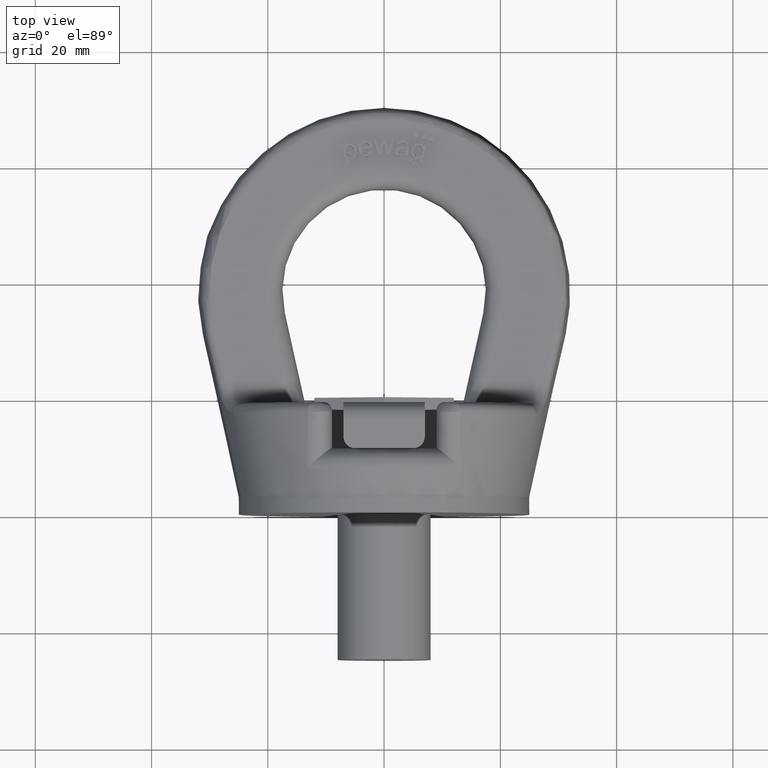
[diagram: clean part render]
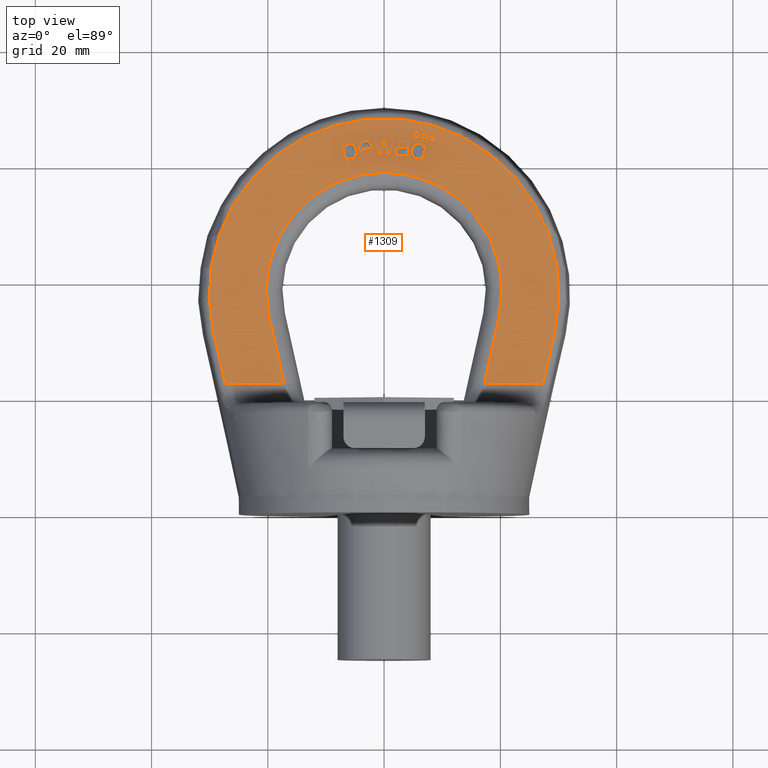
[diagram: same view with one face highlighted and labeled with its STEP entity id]
A machine part, top view. The second image highlights one B-rep face of the part: STEP entity #1309.
In plain terms, the highlighted planar face has unit normal (0, -0, -1).
Its self-contained STEP definition (entity closure, byte-faithful):
#1309=ADVANCED_FACE('',(#1756,#1757,#1758,#1759,#1760,#1761,#1762,#1763,
#1764),#1548,.F.);
#1548=PLANE('',#5122);
#1666=CIRCLE('',#5117,0.525);
#1667=CIRCLE('',#5118,0.525);
#1668=CIRCLE('',#5119,0.525);
#1669=CIRCLE('',#5120,20.3);
#1670=CIRCLE('',#5121,30.0832179129826);
#1756=FACE_BOUND('',#1812,.T.);
#1757=FACE_BOUND('',#1813,.T.);
#1758=FACE_BOUND('',#1814,.T.);
#1759=FACE_BOUND('',#1815,.T.);
#1760=FACE_BOUND('',#1816,.T.);
#1761=FACE_BOUND('',#1817,.T.);
#1762=FACE_BOUND('',#1818,.T.);
#1763=FACE_BOUND('',#1819,.T.);
#1764=FACE_BOUND('',#1820,.T.);
#1812=EDGE_LOOP('',(#2702,#2703,#2704,#2705,#2706,#2707,#2708));
#1813=EDGE_LOOP('',(#2709,#2710,#2711,#2712,#2713,#2714,#2715,#2716,#2717,
#2718,#2719,#2720,#2721,#2722,#2723));
#1814=EDGE_LOOP('',(#2724,#2725,#2726,#2727,#2728));
#1815=EDGE_LOOP('',(#2729));
#1816=EDGE_LOOP('',(#2730));
#1817=EDGE_LOOP('',(#2731));
#1818=EDGE_LOOP('',(#2732,#2733,#2734,#2735,#2736,#2737,#2738,#2739));
#1819=EDGE_LOOP('',(#2740,#2741,#2742,#2743,#2744,#2745));
#1820=EDGE_LOOP('',(#2746,#2747,#2748,#2749,#2750,#2751,#2752,#2753,#2754));
#2086=LINE('',#6270,#2366);
#2087=LINE('',#6302,#2367);
#2088=LINE('',#6304,#2368);
#2089=LINE('',#6305,#2369);
#2090=LINE('',#6308,#2370);
#2091=LINE('',#6310,#2371);
#2092=LINE('',#6312,#2372);
#2093=LINE('',#6326,#2373);
#2094=LINE('',#6328,#2374);
#2095=LINE('',#6344,#2375);
#2096=LINE('',#6346,#2376);
#2097=LINE('',#6348,#2377);
#2098=LINE('',#6350,#2378);
#2099=LINE('',#6352,#2379);
#2100=LINE('',#6368,#2380);
#2101=LINE('',#6391,#2381);
#2102=LINE('',#6401,#2382);
#2103=LINE('',#6403,#2383);
#2104=LINE('',#6417,#2384);
#2105=LINE('',#6419,#2385);
#2106=LINE('',#6420,#2386);
#2107=LINE('',#6423,#2387);
#2108=LINE('',#6425,#2388);
#2109=LINE('',#6427,#2389);
#2110=LINE('',#6429,#2390);
#2111=LINE('',#6453,#2391);
#2112=LINE('',#6498,#2392);
#2366=VECTOR('',#5384,1.);
#2367=VECTOR('',#5385,1.);
#2368=VECTOR('',#5386,1.);
#2369=VECTOR('',#5387,1.);
#2370=VECTOR('',#5388,1.);
#2371=VECTOR('',#5389,1.);
#2372=VECTOR('',#5390,1.);
#2373=VECTOR('',#5391,1.);
#2374=VECTOR('',#5392,1.);
#2375=VECTOR('',#5393,1.);
#2376=VECTOR('',#5394,1.);
#2377=VECTOR('',#5395,1.);
#2378=VECTOR('',#5396,1.);
#2379=VECTOR('',#5397,1.);
#2380=VECTOR('',#5398,1.);
#2381=VECTOR('',#5399,1.);
#2382=VECTOR('',#5408,1.);
#2383=VECTOR('',#5409,1.);
#2384=VECTOR('',#5412,1.);
#2385=VECTOR('',#5413,1.);
#2386=VECTOR('',#5414,1.);
#2387=VECTOR('',#5415,1.);
#2388=VECTOR('',#5416,1.);
#2389=VECTOR('',#5417,1.);
#2390=VECTOR('',#5418,1.);
#2391=VECTOR('',#5419,1.);
#2392=VECTOR('',#5420,1.);
#2702=ORIENTED_EDGE('',*,*,#4266,.T.);
#2703=ORIENTED_EDGE('',*,*,#4267,.T.);
#2704=ORIENTED_EDGE('',*,*,#4268,.T.);
#2705=ORIENTED_EDGE('',*,*,#4269,.T.);
#2706=ORIENTED_EDGE('',*,*,#4270,.T.);
#2707=ORIENTED_EDGE('',*,*,#4271,.T.);
#2708=ORIENTED_EDGE('',*,*,#4272,.T.);
#2709=ORIENTED_EDGE('',*,*,#4273,.T.);
#2710=ORIENTED_EDGE('',*,*,#4274,.T.);
#2711=ORIENTED_EDGE('',*,*,#4275,.T.);
#2712=ORIENTED_EDGE('',*,*,#4276,.T.);
#2713=ORIENTED_EDGE('',*,*,#4277,.T.);
#2714=ORIENTED_EDGE('',*,*,#4278,.T.);
#2715=ORIENTED_EDGE('',*,*,#4279,.T.);
#2716=ORIENTED_EDGE('',*,*,#4280,.T.);
#2717=ORIENTED_EDGE('',*,*,#4281,.T.);
#2718=ORIENTED_EDGE('',*,*,#4282,.T.);
#2719=ORIENTED_EDGE('',*,*,#4283,.T.);
#2720=ORIENTED_EDGE('',*,*,#4284,.T.);
#2721=ORIENTED_EDGE('',*,*,#4285,.T.);
#2722=ORIENTED_EDGE('',*,*,#4286,.T.);
#2723=ORIENTED_EDGE('',*,*,#4287,.T.);
#2724=ORIENTED_EDGE('',*,*,#4288,.T.);
#2725=ORIENTED_EDGE('',*,*,#4289,.T.);
#2726=ORIENTED_EDGE('',*,*,#4290,.T.);
#2727=ORIENTED_EDGE('',*,*,#4291,.T.);
#2728=ORIENTED_EDGE('',*,*,#4292,.T.);
#2729=ORIENTED_EDGE('',*,*,#4293,.F.);
#2730=ORIENTED_EDGE('',*,*,#4294,.F.);
#2731=ORIENTED_EDGE('',*,*,#4295,.F.);
#2732=ORIENTED_EDGE('',*,*,#4296,.T.);
#2733=ORIENTED_EDGE('',*,*,#4297,.T.);
#2734=ORIENTED_EDGE('',*,*,#4298,.T.);
#2735=ORIENTED_EDGE('',*,*,#4299,.T.);
#2736=ORIENTED_EDGE('',*,*,#4300,.T.);
#2737=ORIENTED_EDGE('',*,*,#4301,.T.);
#2738=ORIENTED_EDGE('',*,*,#4302,.T.);
#2739=ORIENTED_EDGE('',*,*,#4303,.T.);
#2740=ORIENTED_EDGE('',*,*,#4304,.T.);
#2741=ORIENTED_EDGE('',*,*,#4305,.T.);
#2742=ORIENTED_EDGE('',*,*,#4306,.T.);
#2743=ORIENTED_EDGE('',*,*,#4307,.T.);
#2744=ORIENTED_EDGE('',*,*,#4308,.T.);
#2745=ORIENTED_EDGE('',*,*,#4309,.T.);
#2746=ORIENTED_EDGE('',*,*,#4310,.T.);
#2747=ORIENTED_EDGE('',*,*,#4311,.T.);
#2748=ORIENTED_EDGE('',*,*,#4312,.T.);
#2749=ORIENTED_EDGE('',*,*,#4313,.T.);
#2750=ORIENTED_EDGE('',*,*,#4314,.T.);
#2751=ORIENTED_EDGE('',*,*,#4315,.T.);
#2752=ORIENTED_EDGE('',*,*,#4316,.T.);
#2753=ORIENTED_EDGE('',*,*,#4317,.T.);
#2754=ORIENTED_EDGE('',*,*,#4318,.T.);
#3878=VERTEX_POINT('',#6263);
#3879=VERTEX_POINT('',#6264);
#3880=VERTEX_POINT('',#6269);
#3881=VERTEX_POINT('',#6271);
#3882=VERTEX_POINT('',#6284);
#3883=VERTEX_POINT('',#6301);
#3884=VERTEX_POINT('',#6303);
#3885=VERTEX_POINT('',#6306);
#3886=VERTEX_POINT('',#6307);
#3887=VERTEX_POINT('',#6309);
#3888=VERTEX_POINT('',#6311);
#3889=VERTEX_POINT('',#6313);
#3890=VERTEX_POINT('',#6320);
#3891=VERTEX_POINT('',#6325);
#3892=VERTEX_POINT('',#6327);
#3893=VERTEX_POINT('',#6329);
#3894=VERTEX_POINT('',#6336);
#3895=VERTEX_POINT('',#6343);
#3896=VERTEX_POINT('',#6345);
#3897=VERTEX_POINT('',#6347);
#3898=VERTEX_POINT('',#6349);
#3899=VERTEX_POINT('',#6351);
#3900=VERTEX_POINT('',#6361);
#3901=VERTEX_POINT('',#6362);
#3902=VERTEX_POINT('',#6367);
#3903=VERTEX_POINT('',#6369);
#3904=VERTEX_POINT('',#6390);
#3905=VERTEX_POINT('',#6393);
#3906=VERTEX_POINT('',#6395);
#3907=VERTEX_POINT('',#6397);
#3908=VERTEX_POINT('',#6399);
#3909=VERTEX_POINT('',#6400);
#3910=VERTEX_POINT('',#6402);
#3911=VERTEX_POINT('',#6404);
#3912=VERTEX_POINT('',#6409);
#3913=VERTEX_POINT('',#6411);
#3914=VERTEX_POINT('',#6416);
#3915=VERTEX_POINT('',#6418);
#3916=VERTEX_POINT('',#6421);
#3917=VERTEX_POINT('',#6422);
#3918=VERTEX_POINT('',#6424);
#3919=VERTEX_POINT('',#6426);
#3920=VERTEX_POINT('',#6428);
#3921=VERTEX_POINT('',#6430);
#3922=VERTEX_POINT('',#6454);
#3923=VERTEX_POINT('',#6455);
#3924=VERTEX_POINT('',#6460);
#3925=VERTEX_POINT('',#6477);
#3926=VERTEX_POINT('',#6484);
#3927=VERTEX_POINT('',#6497);
#3928=VERTEX_POINT('',#6499);
#3929=VERTEX_POINT('',#6504);
#3930=VERTEX_POINT('',#6517);
#4266=EDGE_CURVE('',#3878,#3879,#4854,.T.);
#4267=EDGE_CURVE('',#3879,#3880,#4855,.T.);
#4268=EDGE_CURVE('',#3880,#3881,#2086,.T.);
#4269=EDGE_CURVE('',#3881,#3882,#4856,.T.);
#4270=EDGE_CURVE('',#3882,#3883,#4857,.T.);
#4271=EDGE_CURVE('',#3883,#3884,#2087,.T.);
#4272=EDGE_CURVE('',#3884,#3878,#2088,.T.);
#4273=EDGE_CURVE('',#3885,#3886,#2089,.T.);
#4274=EDGE_CURVE('',#3886,#3887,#2090,.T.);
#4275=EDGE_CURVE('',#3887,#3888,#2091,.T.);
#4276=EDGE_CURVE('',#3888,#3889,#2092,.T.);
#4277=EDGE_CURVE('',#3889,#3890,#4858,.T.);
#4278=EDGE_CURVE('',#3890,#3891,#4859,.T.);
#4279=EDGE_CURVE('',#3891,#3892,#2093,.T.);
#4280=EDGE_CURVE('',#3892,#3893,#2094,.T.);
#4281=EDGE_CURVE('',#3893,#3894,#4860,.T.);
#4282=EDGE_CURVE('',#3894,#3895,#4861,.T.);
#4283=EDGE_CURVE('',#3895,#3896,#2095,.T.);
#4284=EDGE_CURVE('',#3896,#3897,#2096,.T.);
#4285=EDGE_CURVE('',#3897,#3898,#2097,.T.);
#4286=EDGE_CURVE('',#3898,#3899,#2098,.T.);
#4287=EDGE_CURVE('',#3899,#3885,#2099,.T.);
#4288=EDGE_CURVE('',#3900,#3901,#4862,.T.);
#4289=EDGE_CURVE('',#3901,#3902,#4863,.T.);
#4290=EDGE_CURVE('',#3902,#3903,#2100,.T.);
#4291=EDGE_CURVE('',#3903,#3904,#4864,.T.);
#4292=EDGE_CURVE('',#3904,#3900,#2101,.T.);
#4293=EDGE_CURVE('',#3905,#3905,#1666,.T.);
#4294=EDGE_CURVE('',#3906,#3906,#1667,.T.);
#4295=EDGE_CURVE('',#3907,#3907,#1668,.T.);
#4296=EDGE_CURVE('',#3908,#3909,#1669,.T.);
#4297=EDGE_CURVE('',#3909,#3910,#2102,.T.);
#4298=EDGE_CURVE('',#3910,#3911,#2103,.T.);
#4299=EDGE_CURVE('',#3911,#3912,#4865,.T.);
#4300=EDGE_CURVE('',#3912,#3913,#1670,.T.);
#4301=EDGE_CURVE('',#3913,#3914,#4866,.T.);
#4302=EDGE_CURVE('',#3914,#3915,#2104,.T.);
#4303=EDGE_CURVE('',#3915,#3908,#2105,.T.);
#4304=EDGE_CURVE('',#3916,#3917,#2106,.T.);
#4305=EDGE_CURVE('',#3917,#3918,#2107,.T.);
#4306=EDGE_CURVE('',#3918,#3919,#2108,.T.);
#4307=EDGE_CURVE('',#3919,#3920,#2109,.T.);
#4308=EDGE_CURVE('',#3920,#3921,#2110,.T.);
#4309=EDGE_CURVE('',#3921,#3916,#4867,.T.);
#4310=EDGE_CURVE('',#3922,#3923,#2111,.T.);
#4311=EDGE_CURVE('',#3923,#3924,#4868,.T.);
#4312=EDGE_CURVE('',#3924,#3925,#4869,.T.);
#4313=EDGE_CURVE('',#3925,#3926,#4870,.T.);
#4314=EDGE_CURVE('',#3926,#3927,#4871,.T.);
#4315=EDGE_CURVE('',#3927,#3928,#2112,.T.);
#4316=EDGE_CURVE('',#3928,#3929,#4872,.T.);
#4317=EDGE_CURVE('',#3929,#3930,#4873,.T.);
#4318=EDGE_CURVE('',#3930,#3922,#4874,.T.);
#4854=B_SPLINE_CURVE_WITH_KNOTS('',3,(#6251,#6252,#6253,#6254,#6255,#6256,
#6257,#6258,#6259,#6260,#6261,#6262),.UNSPECIFIED.,.F.,.F.,(4,2,2,2,2,4),
(0.,0.305645754892091,0.470829306249216,0.636012857606337,0.802206343843957,
1.),.UNSPECIFIED.);
#4855=B_SPLINE_CURVE_WITH_KNOTS('',3,(#6265,#6266,#6267,#6268),
 .UNSPECIFIED.,.F.,.F.,(4,4),(0.,1.),.UNSPECIFIED.);
#4856=B_SPLINE_CURVE_WITH_KNOTS('',3,(#6272,#6273,#6274,#6275,#6276,#6277,
#6278,#6279,#6280,#6281,#6282,#6283),.UNSPECIFIED.,.F.,.F.,(4,2,2,2,2,4),
(0.,0.163304651309286,0.382303784248526,0.619375661168191,0.856447538087856,
1.),.UNSPECIFIED.);
#4857=B_SPLINE_CURVE_WITH_KNOTS('',3,(#6285,#6286,#6287,#6288,#6289,#6290,
#6291,#6292,#6293,#6294,#6295,#6296,#6297,#6298,#6299,#6300),
 .UNSPECIFIED.,.F.,.F.,(4,2,2,2,2,2,2,4),(0.,0.139503666745454,0.312880428291719,
0.486257189837984,0.605370995480456,0.723854105689076,0.842337215897695,
1.),.UNSPECIFIED.);
#4858=B_SPLINE_CURVE_WITH_KNOTS('',3,(#6314,#6315,#6316,#6317,#6318,#6319),
 .UNSPECIFIED.,.F.,.F.,(4,2,4),(0.,0.728909607654955,1.),.UNSPECIFIED.);
#4859=B_SPLINE_CURVE_WITH_KNOTS('',3,(#6321,#6322,#6323,#6324),
 .UNSPECIFIED.,.F.,.F.,(4,4),(0.,1.),.UNSPECIFIED.);
#4860=B_SPLINE_CURVE_WITH_KNOTS('',3,(#6330,#6331,#6332,#6333,#6334,#6335),
 .UNSPECIFIED.,.F.,.F.,(4,2,4),(0.,0.752082276025118,1.),.UNSPECIFIED.);
#4861=B_SPLINE_CURVE_WITH_KNOTS('',3,(#6337,#6338,#6339,#6340,#6341,#6342),
 .UNSPECIFIED.,.F.,.F.,(4,2,4),(0.,0.250451922487267,1.),.UNSPECIFIED.);
#4862=B_SPLINE_CURVE_WITH_KNOTS('',3,(#6353,#6354,#6355,#6356,#6357,#6358,
#6359,#6360),.UNSPECIFIED.,.F.,.F.,(4,2,2,4),(0.,0.363477968613214,0.72808767591244,
1.),.UNSPECIFIED.);
#4863=B_SPLINE_CURVE_WITH_KNOTS('',3,(#6363,#6364,#6365,#6366),
 .UNSPECIFIED.,.F.,.F.,(4,4),(0.,1.),.UNSPECIFIED.);
#4864=B_SPLINE_CURVE_WITH_KNOTS('',3,(#6370,#6371,#6372,#6373,#6374,#6375,
#6376,#6377,#6378,#6379,#6380,#6381,#6382,#6383,#6384,#6385,#6386,#6387,
#6388,#6389),.UNSPECIFIED.,.F.,.F.,(4,2,2,2,2,2,2,2,2,4),(0.,0.102921203122037,
0.206156274885321,0.336063021724226,0.465707475917728,0.599570296299737,
0.733433116681746,0.86284525505617,0.992257393430591,1.),.UNSPECIFIED.);
#4865=B_SPLINE_CURVE_WITH_KNOTS('',3,(#6405,#6406,#6407,#6408),
 .UNSPECIFIED.,.F.,.F.,(4,4),(0.,1.),.UNSPECIFIED.);
#4866=B_SPLINE_CURVE_WITH_KNOTS('',3,(#6412,#6413,#6414,#6415),
 .UNSPECIFIED.,.F.,.F.,(4,4),(0.,1.),.UNSPECIFIED.);
#4867=B_SPLINE_CURVE_WITH_KNOTS('',3,(#6431,#6432,#6433,#6434,#6435,#6436,
#6437,#6438,#6439,#6440,#6441,#6442,#6443,#6444,#6445,#6446,#6447,#6448,
#6449,#6450,#6451,#6452),.UNSPECIFIED.,.F.,.F.,(4,2,2,2,2,2,2,2,2,2,4),
(0.,0.0830854503763923,0.16567829675508,0.273272220956507,0.380460889370535,
0.487248686046695,0.60194668988405,0.717055250849206,0.83190951462343,0.915821305508708,
1.),.UNSPECIFIED.);
#4868=B_SPLINE_CURVE_WITH_KNOTS('',3,(#6456,#6457,#6458,#6459),
 .UNSPECIFIED.,.F.,.F.,(4,4),(0.,1.),.UNSPECIFIED.);
#4869=B_SPLINE_CURVE_WITH_KNOTS('',3,(#6461,#6462,#6463,#6464,#6465,#6466,
#6467,#6468,#6469,#6470,#6471,#6472,#6473,#6474,#6475,#6476),
 .UNSPECIFIED.,.F.,.F.,(4,2,2,2,2,2,2,4),(0.,0.121639465164564,0.243930904991191,
0.445161792748233,0.646392680505281,0.763565096161279,0.881519242448374,
1.),.UNSPECIFIED.);
#4870=B_SPLINE_CURVE_WITH_KNOTS('',3,(#6478,#6479,#6480,#6481,#6482,#6483),
 .UNSPECIFIED.,.F.,.F.,(4,2,4),(0.,0.329344693449401,1.),.UNSPECIFIED.);
#4871=B_SPLINE_CURVE_WITH_KNOTS('',3,(#6485,#6486,#6487,#6488,#6489,#6490,
#6491,#6492,#6493,#6494,#6495,#6496),.UNSPECIFIED.,.F.,.F.,(4,2,2,2,2,4),
(0.,0.0173977322142917,0.217983350684955,0.490675035316427,0.745337517658212,
1.),.UNSPECIFIED.);
#4872=B_SPLINE_CURVE_WITH_KNOTS('',3,(#6500,#6501,#6502,#6503),
 .UNSPECIFIED.,.F.,.F.,(4,4),(0.,1.),.UNSPECIFIED.);
#4873=B_SPLINE_CURVE_WITH_KNOTS('',3,(#6505,#6506,#6507,#6508,#6509,#6510,
#6511,#6512,#6513,#6514,#6515,#6516),.UNSPECIFIED.,.F.,.F.,(4,2,2,2,2,4),
(0.,0.201730292707488,0.402155128097309,0.601755169925859,0.800199545078044,
1.),.UNSPECIFIED.);
#4874=B_SPLINE_CURVE_WITH_KNOTS('',3,(#6518,#6519,#6520,#6521,#6522,#6523,
#6524,#6525,#6526,#6527),.UNSPECIFIED.,.F.,.F.,(4,2,2,2,4),(0.,0.161403604805117,
0.323059797411176,0.66178003848106,1.),.UNSPECIFIED.);
#5117=AXIS2_PLACEMENT_3D('',#6392,#5400,#5401);
#5118=AXIS2_PLACEMENT_3D('',#6394,#5402,#5403);
#5119=AXIS2_PLACEMENT_3D('',#6396,#5404,#5405);
#5120=AXIS2_PLACEMENT_3D('',#6398,#5406,#5407);
#5121=AXIS2_PLACEMENT_3D('',#6410,#5410,#5411);
#5122=AXIS2_PLACEMENT_3D('',#6528,#5421,#5422);
#5384=DIRECTION('',(0.92603689824407,-0.377432991523664,4.83006298281828E-17));
#5385=DIRECTION('',(0.240441711768691,0.970663578816957,-1.24217180959385E-16));
#5386=DIRECTION('',(0.970663578816971,-0.240441711768634,3.07696634269007E-17));
#5387=DIRECTION('',(-0.258675883018077,-0.965964175083537,1.23615791665818E-16));
#5388=DIRECTION('',(-0.999999995678886,9.29635860433129E-5,-1.18966806236305E-20));
#5389=DIRECTION('',(-0.297319028478967,0.954778191678216,-1.22184305664705E-16));
#5390=DIRECTION('',(0.999999995678886,-9.29635860091688E-5,1.18966806192611E-20));
#5391=DIRECTION('',(0.26668775938768,0.963782983348834,-1.23336661497211E-16));
#5392=DIRECTION('',(0.999999995678886,-9.2963586056326E-5,1.18966806252958E-20));
#5393=DIRECTION('',(0.999999995678886,-9.29635860772335E-5,1.18966806279714E-20));
#5394=DIRECTION('',(-0.303109223404766,-0.952955822001713,1.21951094458658E-16));
#5395=DIRECTION('',(-0.999999995678886,9.29635860083686E-5,-1.18966806191586E-20));
#5396=DIRECTION('',(-0.26055342948147,0.965459429694197,-1.23551198689699E-16));
#5397=DIRECTION('',(-0.226101851815538,0.974103666251999,-1.24657413778211E-16));
#5398=DIRECTION('',(0.99995564898741,0.00941807083052857,-1.20524374682928E-18));
#5399=DIRECTION('',(-0.991600377783164,-0.129339440157616,1.65517497450822E-17));
#5400=DIRECTION('',(0.,1.27971403965502E-16,1.));
#5401=DIRECTION('',(0.,0.999999999999995,0.));
#5402=DIRECTION('',(0.,1.27971403965502E-16,1.));
#5403=DIRECTION('',(0.,0.999999999999995,0.));
#5404=DIRECTION('',(0.,1.27971403965502E-16,1.));
#5405=DIRECTION('',(0.,0.999999999999995,0.));
#5406=DIRECTION('',(0.,-1.27971403965502E-16,-1.));
#5407=DIRECTION('',(0.,1.,-1.28181537633754E-16));
#5408=DIRECTION('',(-0.217024111805407,-0.97616624347243,1.24921364680897E-16));
#5409=DIRECTION('',(1.,0.,0.));
#5410=DIRECTION('',(0.,1.27971403965502E-16,1.));
#5411=DIRECTION('',(0.,1.,-1.1532831899796E-16));
#5412=DIRECTION('',(1.,0.,0.));
#5413=DIRECTION('',(-0.217024111805407,0.97616624347243,-1.24921364680897E-16));
#5414=DIRECTION('',(0.240261234879319,-0.970708266686889,1.2422289972884E-16));
#5415=DIRECTION('',(-0.97070826668689,-0.240261234879317,3.07465675459915E-17));
#5416=DIRECTION('',(-0.240261234879318,0.970708266686889,-1.2422289972884E-16));
#5417=DIRECTION('',(0.9707082666869,0.240261234879277,-3.07465675459863E-17));
#5418=DIRECTION('',(0.240261234879321,-0.970708266686889,1.2422289972884E-16));
#5419=DIRECTION('',(-0.991576312927651,0.129523803375307,-1.65753429648896E-17));
#5420=DIRECTION('',(-0.965560779386225,0.260177595713131,-3.32952922037782E-17));
#5421=DIRECTION('',(0.,-1.27971403965502E-16,-1.));
#5422=DIRECTION('',(0.,1.,-1.28369537222284E-16));
#6251=CARTESIAN_POINT('',(7.24005046726286,63.357438363495,7.));
#6252=CARTESIAN_POINT('',(7.06437854891768,62.648250545357,7.));
#6253=CARTESIAN_POINT('',(6.88870663057249,61.9390627272191,7.));
#6254=CARTESIAN_POINT('',(6.61809437400399,60.8466006103081,7.));
#6255=CARTESIAN_POINT('',(6.51113146138758,60.5852979369876,7.));
#6256=CARTESIAN_POINT('',(6.27272991894128,60.3048976358151,7.));
#6257=CARTESIAN_POINT('',(6.11572549508912,60.2091141327275,7.));
#6258=CARTESIAN_POINT('',(5.72578205178179,60.1095534020604,7.));
#6259=CARTESIAN_POINT('',(5.50222487928482,60.1157170039598,7.));
#6260=CARTESIAN_POINT('',(4.95218007910664,60.2519678288496,7.));
#6261=CARTESIAN_POINT('',(4.7271233024176,60.3778210425066,7.));
#6262=CARTESIAN_POINT('',(4.5759086919016,60.5554876325012,7.));
#6263=CARTESIAN_POINT('',(7.24005046726286,63.357438363495,7.));
#6264=CARTESIAN_POINT('',(4.5759086919016,60.5554876325012,7.));
#6265=CARTESIAN_POINT('',(4.5759086919016,60.5554876325012,7.));
#6266=CARTESIAN_POINT('',(4.4246940813856,60.7331542224958,7.));
#6267=CARTESIAN_POINT('',(4.38556252641333,60.9540840223014,7.));
#6268=CARTESIAN_POINT('',(4.45741442637212,61.2176269819729,7.));
#6269=CARTESIAN_POINT('',(4.45741442637212,61.2176269819729,7.));
#6270=CARTESIAN_POINT('',(48.9530651344794,43.0821438404289,7.));
#6271=CARTESIAN_POINT('',(4.85553557396283,61.0553612493558,7.));
#6272=CARTESIAN_POINT('',(4.85553557396283,61.0553612493558,7.));
#6273=CARTESIAN_POINT('',(4.84133665877704,60.9260484552302,7.));
#6274=CARTESIAN_POINT('',(4.86648490188893,60.8229638200587,7.));
#6275=CARTESIAN_POINT('',(5.01747163636235,60.6430392345293,7.));
#6276=CARTESIAN_POINT('',(5.15172472740003,60.5687438002828,7.));
#6277=CARTESIAN_POINT('',(5.53109646257116,60.474770160608,7.));
#6278=CARTESIAN_POINT('',(5.69178707220117,60.4755526560074,7.));
#6279=CARTESIAN_POINT('',(5.94411223079042,60.5772421687673,7.));
#6280=CARTESIAN_POINT('',(6.04353670221573,60.6679176811586,7.));
#6281=CARTESIAN_POINT('',(6.15847089292808,60.8764048198936,7.));
#6282=CARTESIAN_POINT('',(6.21307428866056,61.0530070706568,7.));
#6283=CARTESIAN_POINT('',(6.27868961473761,61.3254743270329,7.));
#6284=CARTESIAN_POINT('',(6.27868961473761,61.3254743270329,7.));
#6285=CARTESIAN_POINT('',(6.27868961473761,61.3254743270329,7.));
#6286=CARTESIAN_POINT('',(6.03959268596029,61.1559379352512,7.));
#6287=CARTESIAN_POINT('',(5.78230614754124,61.1062110746877,7.));
#6288=CARTESIAN_POINT('',(5.16151603544303,61.2599861214283,7.));
#6289=CARTESIAN_POINT('',(4.92459227285711,61.4478144394779,7.));
#6290=CARTESIAN_POINT('',(4.66886321495896,62.0295666485214,7.));
#6291=CARTESIAN_POINT('',(4.64679214026878,62.3458929113161,7.));
#6292=CARTESIAN_POINT('',(4.78952557392424,62.9221080135531,7.));
#6293=CARTESIAN_POINT('',(4.88646284667618,63.1277810045278,7.));
#6294=CARTESIAN_POINT('',(5.15766912005156,63.4819555579424,7.));
#6295=CARTESIAN_POINT('',(5.32096766459865,63.6049713433876,7.));
#6296=CARTESIAN_POINT('',(5.70332385001402,63.7390211859215,7.));
#6297=CARTESIAN_POINT('',(5.90966773045656,63.7460211526314,7.));
#6298=CARTESIAN_POINT('',(6.42699282387172,63.6178752803476,7.));
#6299=CARTESIAN_POINT('',(6.64111646475293,63.4403069007642,7.));
#6300=CARTESIAN_POINT('',(6.77467110143459,63.1572456123329,7.));
#6301=CARTESIAN_POINT('',(6.77467110143459,63.1572456123329,7.));
#6302=CARTESIAN_POINT('',(14.013891190372,92.3819888055256,7.));
#6303=CARTESIAN_POINT('',(6.84829830250573,63.4544787419937,7.));
#6304=CARTESIAN_POINT('',(56.8344071121361,51.0724899364706,7.));
#6305=CARTESIAN_POINT('',(8.32394350152676,94.9095105690244,7.));
#6306=CARTESIAN_POINT('',(-0.0113152070716454,63.7834496134445,7.));
#6307=CARTESIAN_POINT('',(-0.533524216251934,61.8333830324839,7.));
#6308=CARTESIAN_POINT('',(63.9983106084343,61.8273839216787,7.));
#6309=CARTESIAN_POINT('',(-0.989956829624197,61.8334254640966,7.));
#6310=CARTESIAN_POINT('',(-0.40194849907213,59.9451590675315,7.));
#6311=CARTESIAN_POINT('',(-1.77959550586107,64.3691857591359,7.));
#6312=CARTESIAN_POINT('',(63.9985463349799,64.363070787163,7.));
#6313=CARTESIAN_POINT('',(-1.32771810819112,64.3691437509924,7.));
#6314=CARTESIAN_POINT('',(-1.32771810819112,64.3691437509924,7.));
#6315=CARTESIAN_POINT('',(-1.1908033201168,63.8811545562251,7.));
#6316=CARTESIAN_POINT('',(-1.05388853204248,63.3931653614579,7.));
#6317=CARTESIAN_POINT('',(-0.866053460812178,62.7236870206012,7.));
#6318=CARTESIAN_POINT('',(-0.814970650875456,62.5422435137931,7.));
#6319=CARTESIAN_POINT('',(-0.763969104329104,62.3607771873444,7.));
#6320=CARTESIAN_POINT('',(-0.763969104329104,62.3607771873444,7.));
#6321=CARTESIAN_POINT('',(-0.763969104329104,62.3607771873444,7.));
#6322=CARTESIAN_POINT('',(-0.757589305242626,62.3876376841642,7.));
#6323=CARTESIAN_POINT('',(-0.712931960188902,62.5622306170649,7.));
#6324=CARTESIAN_POINT('',(-0.63090819554517,62.8836607010842,7.));
#6325=CARTESIAN_POINT('',(-0.63090819554517,62.8836607010842,7.));
#6326=CARTESIAN_POINT('',(8.36519229170224,95.3946712776938,7.));
#6327=CARTESIAN_POINT('',(-0.21988964938736,64.3690407632857,7.));
#6328=CARTESIAN_POINT('',(63.9985463349792,64.3630707871599,7.));
#6329=CARTESIAN_POINT('',(0.229254618861202,64.3689990092237,7.));
#6330=CARTESIAN_POINT('',(0.229254618861202,64.3689990092237,7.));
#6331=CARTESIAN_POINT('',(0.357969796706617,63.8786229242853,7.));
#6332=CARTESIAN_POINT('',(0.486684974552033,63.3882468393468,7.));
#6333=CARTESIAN_POINT('',(0.657830049962794,62.736222319463,7.));
#6334=CARTESIAN_POINT('',(0.701615548964706,62.5749327475006,7.));
#6335=CARTESIAN_POINT('',(0.744723247248336,62.4134637440467,7.));
#6336=CARTESIAN_POINT('',(0.744723247248336,62.4134637440467,7.));
#6337=CARTESIAN_POINT('',(0.744723247248336,62.4134637440467,7.));
#6338=CARTESIAN_POINT('',(0.793934753671902,62.5767149045034,7.));
#6339=CARTESIAN_POINT('',(0.843146260095468,62.7399660649603,7.));
#6340=CARTESIAN_POINT('',(1.0396370912891,63.3917924068607,7.));
#6341=CARTESIAN_POINT('',(1.18701922100206,63.8803365922047,7.));
#6342=CARTESIAN_POINT('',(1.33434994824357,64.3688962755986,7.));
#6343=CARTESIAN_POINT('',(1.33434994824357,64.3688962755986,7.));
#6344=CARTESIAN_POINT('',(63.9985463349789,64.3630707871586,7.));
#6345=CARTESIAN_POINT('',(1.75980709484008,64.3688567235763,7.));
#6346=CARTESIAN_POINT('',(11.9931883804669,96.5419465601694,7.));
#6347=CARTESIAN_POINT('',(0.953298188984697,61.8332448121407,7.));
#6348=CARTESIAN_POINT('',(63.9983106084349,61.827383921681,7.));
#6349=CARTESIAN_POINT('',(0.498687661893352,61.8332870743658,7.));
#6350=CARTESIAN_POINT('',(0.239765402578279,62.7927023363754,7.));
#6351=CARTESIAN_POINT('',(0.0888594182540952,63.3518721229831,7.));
#6352=CARTESIAN_POINT('',(-0.310566497710829,65.0726994670021,7.));
#6353=CARTESIAN_POINT('',(-3.91069709002636,62.6884124578231,7.));
#6354=CARTESIAN_POINT('',(-3.85842020108138,62.4144124607242,7.));
#6355=CARTESIAN_POINT('',(-3.75135984387341,62.2134737995229,7.));
#6356=CARTESIAN_POINT('',(-3.42716826990398,61.9573209852618,7.));
#6357=CARTESIAN_POINT('',(-3.23918888047722,61.907358785238,7.));
#6358=CARTESIAN_POINT('',(-2.86699190129759,61.9559063150635,7.));
#6359=CARTESIAN_POINT('',(-2.73681039645723,62.0144224356741,7.));
#6360=CARTESIAN_POINT('',(-2.63454076385524,62.1108337601005,7.));
#6361=CARTESIAN_POINT('',(-3.91069709002636,62.6884124578231,7.));
#6362=CARTESIAN_POINT('',(-2.63454076385524,62.1108337601005,7.));
#6363=CARTESIAN_POINT('',(-2.63454076385524,62.1108337601005,7.));
#6364=CARTESIAN_POINT('',(-2.53329032858994,62.2080150996094,7.));
#6365=CARTESIAN_POINT('',(-2.46087821844722,62.3501944340771,7.));
#6366=CARTESIAN_POINT('',(-2.4184394373743,62.5390296274791,7.));
#6367=CARTESIAN_POINT('',(-2.4184394373743,62.5390296274791,7.));
#6368=CARTESIAN_POINT('',(64.1585500428322,63.1660842405941,7.));
#6369=CARTESIAN_POINT('',(-1.96329343395472,62.5433164149009,7.));
#6370=CARTESIAN_POINT('',(-1.96329343395472,62.5433164149009,7.));
#6371=CARTESIAN_POINT('',(-2.00107738426873,62.2765313649574,7.));
#6372=CARTESIAN_POINT('',(-2.10601255219386,62.0596794615738,7.));
#6373=CARTESIAN_POINT('',(-2.45071011814212,61.7253329122581,7.));
#6374=CARTESIAN_POINT('',(-2.68573968121464,61.622881073917,7.));
#6375=CARTESIAN_POINT('',(-3.3569589907546,61.5353305528967,7.));
#6376=CARTESIAN_POINT('',(-3.66797858847342,61.6094378725276,7.));
#6377=CARTESIAN_POINT('',(-4.16581636991126,62.00634817133,7.));
#6378=CARTESIAN_POINT('',(-4.31685689719284,62.308565588716,7.));
#6379=CARTESIAN_POINT('',(-4.42536769125703,63.1404800013381,7.));
#6380=CARTESIAN_POINT('',(-4.35709907783399,63.4834776503627,7.));
#6381=CARTESIAN_POINT('',(-3.97535189915098,64.0082247350394,7.));
#6382=CARTESIAN_POINT('',(-3.70245673009424,64.1630097743704,7.));
#6383=CARTESIAN_POINT('',(-3.00774926167401,64.2536239744574,7.));
#6384=CARTESIAN_POINT('',(-2.7127590838051,64.1756199484562,7.));
#6385=CARTESIAN_POINT('',(-2.21937532421417,63.7740501486566,7.));
#6386=CARTESIAN_POINT('',(-2.06904644406354,63.4667889066673,7.));
#6387=CARTESIAN_POINT('',(-2.01160636524195,63.0264158558022,7.));
#6388=CARTESIAN_POINT('',(-2.00753007171543,62.9881205195984,7.));
#6389=CARTESIAN_POINT('',(-2.0027358763677,62.9372774650841,7.));
#6390=CARTESIAN_POINT('',(-2.0027358763677,62.9372774650841,7.));
#6391=CARTESIAN_POINT('',(65.0842066377915,71.6877658483842,7.));
#6392=CARTESIAN_POINT('',(5.58481650111382,65.2226462882868,7.));
#6393=CARTESIAN_POINT('',(5.58481650111382,65.7476462882868,7.));
#6394=CARTESIAN_POINT('',(6.91355018829228,64.9100894317676,7.));
#6395=CARTESIAN_POINT('',(6.91355018829228,65.4350894317676,7.));
#6396=CARTESIAN_POINT('',(8.225,64.5315073516691,7.));
#6397=CARTESIAN_POINT('',(8.225,65.0565073516691,7.));
#6398=CARTESIAN_POINT('',(0.,38.5,7.00000000000001));
#6399=CARTESIAN_POINT('',(-19.8161747424903,34.0944105303503,7.00000000000001));
#6400=CARTESIAN_POINT('',(19.8161747424903,34.0944105303502,7.00000000000001));
#6401=CARTESIAN_POINT('',(17.1033733449227,21.8923324869448,7.00000000000001));
#6402=CARTESIAN_POINT('',(17.2384717497033,22.5,7.00000000000001));
#6403=CARTESIAN_POINT('',(64.,22.5,7.00000000000001));
#6404=CARTESIAN_POINT('',(27.3333532184673,22.5,7.00000000000001));
#6405=CARTESIAN_POINT('',(27.3333532184673,22.5,7.00000000000001));
#6406=CARTESIAN_POINT('',(28.0034692359274,25.4528212440949,7.00000000000001));
#6407=CARTESIAN_POINT('',(28.6726456131273,28.4058558317876,7.00000000000001));
#6408=CARTESIAN_POINT('',(29.3410624356779,31.3590621787545,7.00000000000001));
#6409=CARTESIAN_POINT('',(29.3410624356779,31.3590621787545,7.00000000000001));
#6410=CARTESIAN_POINT('',(-1.38050658413677E-30,38.,7.00000000000001));
#6411=CARTESIAN_POINT('',(-29.3410624356779,31.3590621787547,7.00000000000001));
#6412=CARTESIAN_POINT('',(-29.3410624356779,31.3590621787547,7.00000000000001));
#6413=CARTESIAN_POINT('',(-28.6726456131273,28.4058558317877,7.00000000000001));
#6414=CARTESIAN_POINT('',(-28.0034692359276,25.4528212440949,7.00000000000001));
#6415=CARTESIAN_POINT('',(-27.3333532184675,22.5,7.00000000000001));
#6416=CARTESIAN_POINT('',(-27.3333532184675,22.5,7.00000000000001));
#6417=CARTESIAN_POINT('',(64.,22.5,7.00000000000001));
#6418=CARTESIAN_POINT('',(-17.2384717497033,22.5,7.00000000000001));
#6419=CARTESIAN_POINT('',(-19.8161747424903,34.0944105303502,7.00000000000001));
#6420=CARTESIAN_POINT('',(-6.58438482188133,62.5295693438527,7.));
#6421=CARTESIAN_POINT('',(-6.2691627084203,61.2560026299679,7.));
#6422=CARTESIAN_POINT('',(-5.97272373788487,60.0583239473814,7.));
#6423=CARTESIAN_POINT('',(64.6116610839965,77.5287546035285,7.));
#6424=CARTESIAN_POINT('',(-6.39721515144223,59.9532575389484,7.));
#6425=CARTESIAN_POINT('',(-7.00887623543871,62.4245029354198,7.));
#6426=CARTESIAN_POINT('',(-7.23985045448087,63.3576896141963,7.));
#6427=CARTESIAN_POINT('',(63.7690257809586,80.9331866787735,7.));
#6428=CARTESIAN_POINT('',(-6.85338639672136,63.4533438235404,7.));
#6429=CARTESIAN_POINT('',(-6.62241217767914,62.5201571447637,7.));
#6430=CARTESIAN_POINT('',(-6.77422127251451,63.1334992987278,7.));
#6431=CARTESIAN_POINT('',(-6.77422127251451,63.1334992987278,7.));
#6432=CARTESIAN_POINT('',(-6.71411014732033,63.2812013520582,7.));
#6433=CARTESIAN_POINT('',(-6.63387360823947,63.4006787040044,7.));
#6434=CARTESIAN_POINT('',(-6.43550820765439,63.5822064998099,7.));
#6435=CARTESIAN_POINT('',(-6.30381876433443,63.648400837815,7.));
#6436=CARTESIAN_POINT('',(-5.92708263480227,63.7416472752992,7.));
#6437=CARTESIAN_POINT('',(-5.7242774878566,63.7337333903727,7.));
#6438=CARTESIAN_POINT('',(-5.3444316469731,63.5994280927816,7.));
#6439=CARTESIAN_POINT('',(-5.18292772712951,63.4766310432629,7.));
#6440=CARTESIAN_POINT('',(-4.91949644291282,63.1238521631191,7.));
#6441=CARTESIAN_POINT('',(-4.82320336946778,62.9181504972863,7.));
#6442=CARTESIAN_POINT('',(-4.70273470219649,62.4314305682236,7.));
#6443=CARTESIAN_POINT('',(-4.69257426814531,62.1932021213242,7.));
#6444=CARTESIAN_POINT('',(-4.77728523583675,61.7453292629923,7.));
#6445=CARTESIAN_POINT('',(-4.87304922881173,61.5572818247688,7.));
#6446=CARTESIAN_POINT('',(-5.16957632999269,61.25538847996,7.));
#6447=CARTESIAN_POINT('',(-5.3407280345854,61.156508157109,7.));
#6448=CARTESIAN_POINT('',(-5.6758993798734,61.0735494721172,7.));
#6449=CARTESIAN_POINT('',(-5.81056097302493,61.0715804024232,7.));
#6450=CARTESIAN_POINT('',(-6.064417197774,61.13254468973,7.));
#6451=CARTESIAN_POINT('',(-6.1744877953978,61.1844297735035,7.));
#6452=CARTESIAN_POINT('',(-6.2691627084203,61.2560026299679,7.));
#6453=CARTESIAN_POINT('',(60.6185729591746,54.1133068192878,7.));
#6454=CARTESIAN_POINT('',(4.18440604258496,61.4849713538831,7.));
#6455=CARTESIAN_POINT('',(3.73181827276167,61.5440902422071,7.));
#6456=CARTESIAN_POINT('',(3.73181827276167,61.5440902422071,7.));
#6457=CARTESIAN_POINT('',(3.69813102935167,61.6378852381094,7.));
#6458=CARTESIAN_POINT('',(3.68279191468611,61.7455370943227,7.));
#6459=CARTESIAN_POINT('',(3.68556898539745,61.865270156155,7.));
#6460=CARTESIAN_POINT('',(3.68556898539745,61.865270156155,7.));
#6461=CARTESIAN_POINT('',(3.68556898539745,61.865270156155,7.));
#6462=CARTESIAN_POINT('',(3.50725761438629,61.7522125425314,7.));
#6463=CARTESIAN_POINT('',(3.34037257907481,61.6773933197172,7.));
#6464=CARTESIAN_POINT('',(3.02885450263459,61.6058159996709,7.));
#6465=CARTESIAN_POINT('',(2.86619572306072,61.5993709765141,7.));
#6466=CARTESIAN_POINT('',(2.41451132203947,61.658371863065,7.));
#6467=CARTESIAN_POINT('',(2.20742002631699,61.7540491651271,7.));
#6468=CARTESIAN_POINT('',(1.9409502382975,62.0633612705063,7.));
#6469=CARTESIAN_POINT('',(1.88756576557516,62.2455119245576,7.));
#6470=CARTESIAN_POINT('',(1.93105514698476,62.578447179282,7.));
#6471=CARTESIAN_POINT('',(1.9746913524875,62.687425195476,7.));
#6472=CARTESIAN_POINT('',(2.11542526668901,62.8756072601303,7.));
#6473=CARTESIAN_POINT('',(2.20072234260099,62.9477554029418,7.));
#6474=CARTESIAN_POINT('',(2.40146077512006,63.0464229771736,7.));
#6475=CARTESIAN_POINT('',(2.5110475820505,63.0796878603953,7.));
#6476=CARTESIAN_POINT('',(2.63085376932726,63.0965454178918,7.));
#6477=CARTESIAN_POINT('',(2.63085376932726,63.0965454178918,7.));
#6478=CARTESIAN_POINT('',(2.63085376932726,63.0965454178918,7.));
#6479=CARTESIAN_POINT('',(2.71957309761527,63.1075309330954,7.));
#6480=CARTESIAN_POINT('',(2.85063478791552,63.1120825376174,7.));
#6481=CARTESIAN_POINT('',(3.37989007752993,63.106008937609,7.));
#6482=CARTESIAN_POINT('',(3.64462255286431,63.1203375983261,7.));
#6483=CARTESIAN_POINT('',(3.81736123139865,63.1555642239881,7.));
#6484=CARTESIAN_POINT('',(3.81736123139865,63.1555642239881,7.));
#6485=CARTESIAN_POINT('',(3.81736123139865,63.1555642239881,7.));
#6486=CARTESIAN_POINT('',(3.82682210013083,63.2139248252734,7.));
#6487=CARTESIAN_POINT('',(3.83259627965074,63.2510955720294,7.));
#6488=CARTESIAN_POINT('',(3.85729824829139,63.4402027967128,7.));
#6489=CARTESIAN_POINT('',(3.83174737575617,63.5681510520141,7.));
#6490=CARTESIAN_POINT('',(3.66180491162437,63.7607937914636,7.));
#6491=CARTESIAN_POINT('',(3.50298184641904,63.8296159701047,7.));
#6492=CARTESIAN_POINT('',(3.08020524706315,63.8848407999164,7.));
#6493=CARTESIAN_POINT('',(2.92572313025749,63.8698038277599,7.));
#6494=CARTESIAN_POINT('',(2.71227194298241,63.7550154900927,7.));
#6495=CARTESIAN_POINT('',(2.6246697718948,63.6400418017373,7.));
#6496=CARTESIAN_POINT('',(2.55438428575305,63.4677245974063,7.));
#6497=CARTESIAN_POINT('',(2.55438428575305,63.4677245974063,7.));
#6498=CARTESIAN_POINT('',(55.6874066576824,49.1506331114741,7.));
#6499=CARTESIAN_POINT('',(2.13812650535569,63.5798883791307,7.));
#6500=CARTESIAN_POINT('',(2.13812650535569,63.5798883791307,7.));
#6501=CARTESIAN_POINT('',(2.20028167227906,63.7532675994195,7.));
#6502=CARTESIAN_POINT('',(2.28230490119097,63.8888355053433,7.));
#6503=CARTESIAN_POINT('',(2.38509956089349,63.986474095129,7.));
#6504=CARTESIAN_POINT('',(2.38509956089349,63.986474095129,7.));
#6505=CARTESIAN_POINT('',(2.38509956089349,63.986474095129,7.));
#6506=CARTESIAN_POINT('',(2.48710682347771,64.0851185140336,7.));
#6507=CARTESIAN_POINT('',(2.62640250332485,64.1527058601167,7.));
#6508=CARTESIAN_POINT('',(2.97505737842558,64.2277703974058,7.));
#6509=CARTESIAN_POINT('',(3.1733371549054,64.2320599913958,7.));
#6510=CARTESIAN_POINT('',(3.61147102389602,64.1748291314415,7.));
#6511=CARTESIAN_POINT('',(3.78516813026734,64.1259537908815,7.));
#6512=CARTESIAN_POINT('',(4.04581472296165,63.9892657890498,7.));
#6513=CARTESIAN_POINT('',(4.13770805281753,63.9128529978201,7.));
#6514=CARTESIAN_POINT('',(4.24640943663186,63.7428114270274,7.));
#6515=CARTESIAN_POINT('',(4.27856681967344,63.6407171731777,7.));
#6516=CARTESIAN_POINT('',(4.28855288387445,63.5202199138679,7.));
#6517=CARTESIAN_POINT('',(4.28855288387445,63.5202199138679,7.));
#6518=CARTESIAN_POINT('',(4.28855288387445,63.5202199138679,7.));
#6519=CARTESIAN_POINT('',(4.2934971066389,63.4455300431319,7.));
#6520=CARTESIAN_POINT('',(4.28367621954268,63.3140754090951,7.));
#6521=CARTESIAN_POINT('',(4.23423362503346,62.9355650172796,7.));
#6522=CARTESIAN_POINT('',(4.2094929991649,62.7461618501475,7.));
#6523=CARTESIAN_POINT('',(4.13291303065609,62.159899859384,7.));
#6524=CARTESIAN_POINT('',(4.10924270385651,61.9083525301003,7.));
#6525=CARTESIAN_POINT('',(4.11980706878582,61.6940275946843,7.));
#6526=CARTESIAN_POINT('',(4.14272885630837,61.5879368136299,7.));
#6527=CARTESIAN_POINT('',(4.18440604258496,61.4849713538831,7.));
#6528=CARTESIAN_POINT('',(64.,80.,7.));